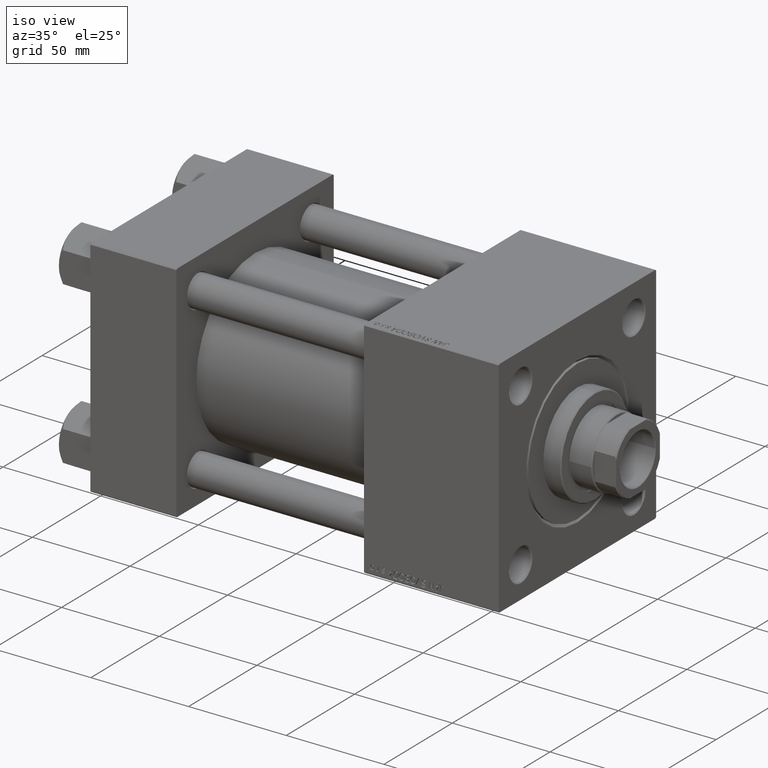
[diagram: clean part render]
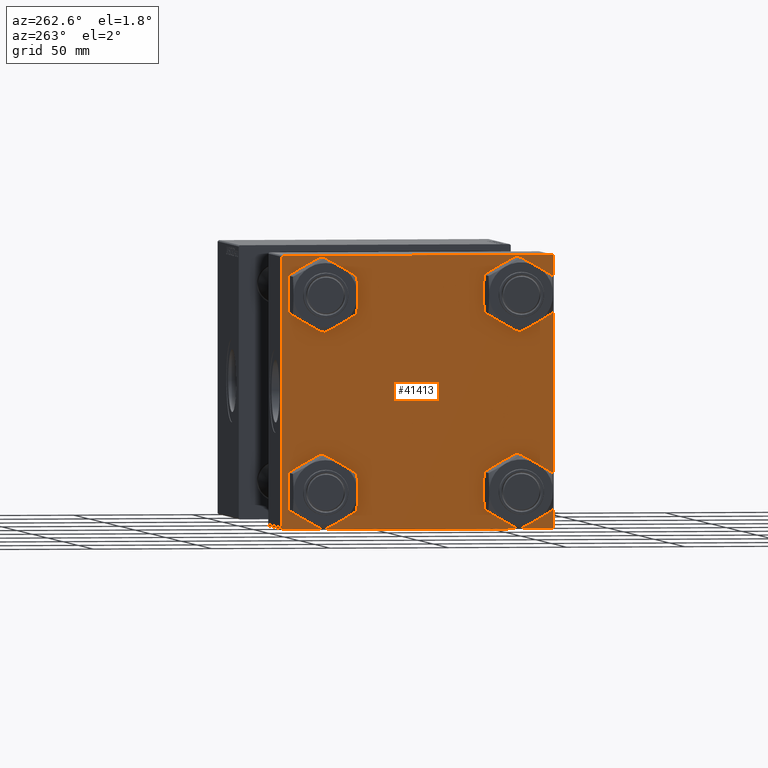
[diagram: tour spotlight — one face highlighted and labeled with its STEP entity id]
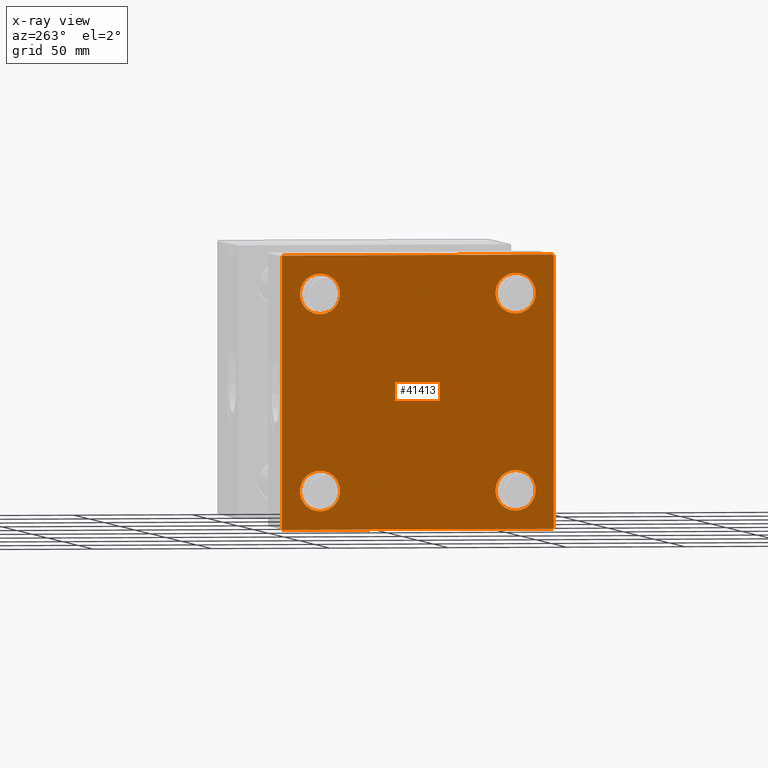
[diagram: x-ray of the same camera — body ghosted, this tour face saturated]
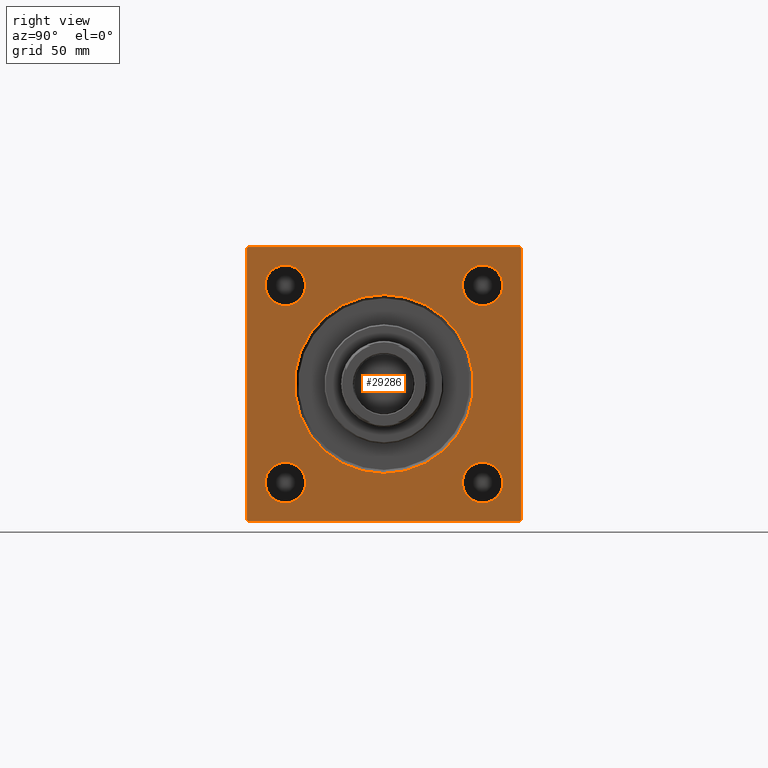
[diagram: tour spotlight — one face highlighted and labeled with its STEP entity id]
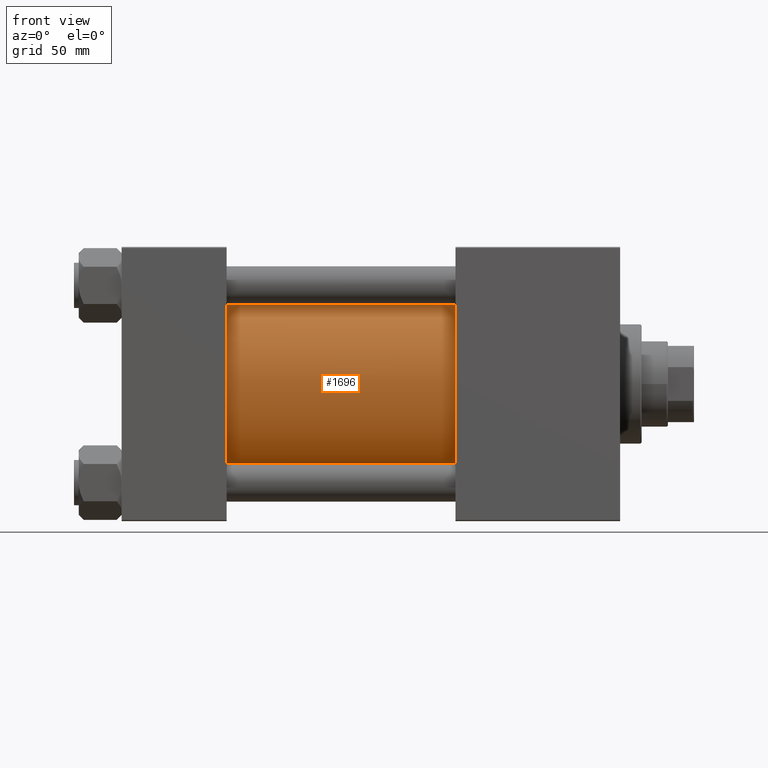
[diagram: tour spotlight — one face highlighted and labeled with its STEP entity id]
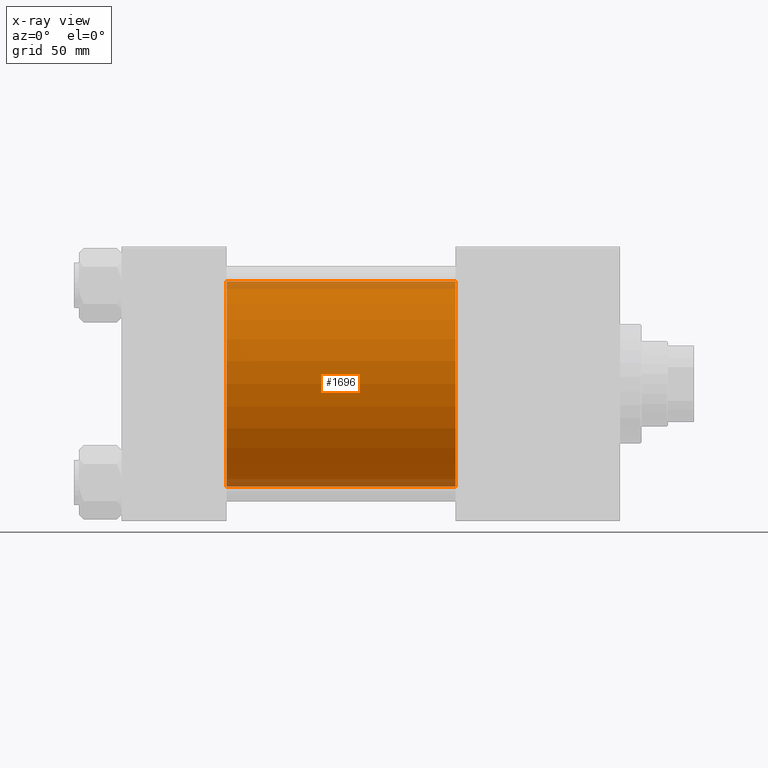
[diagram: x-ray of the same camera — body ghosted, this tour face saturated]
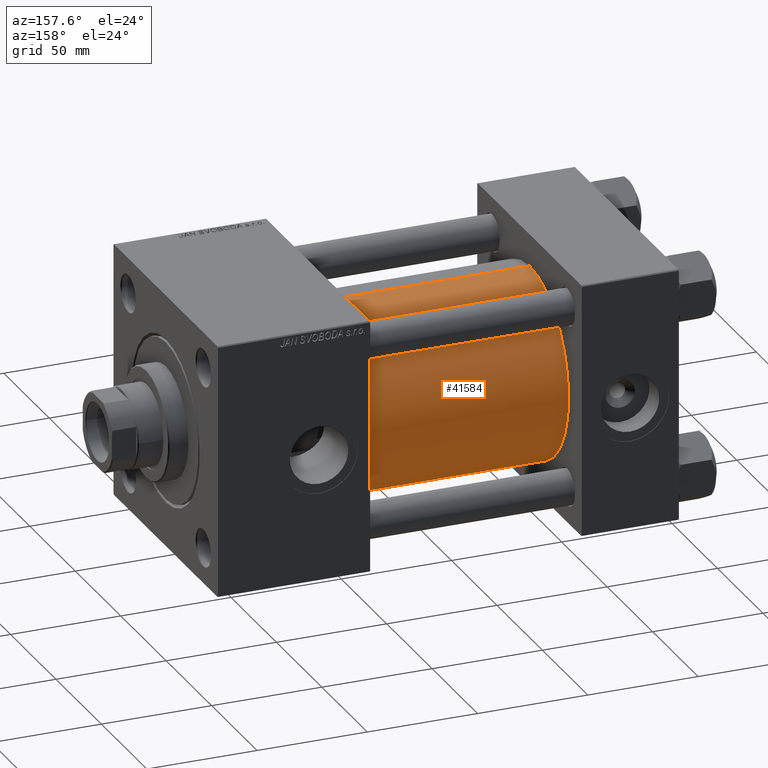
[diagram: tour spotlight — one face highlighted and labeled with its STEP entity id]
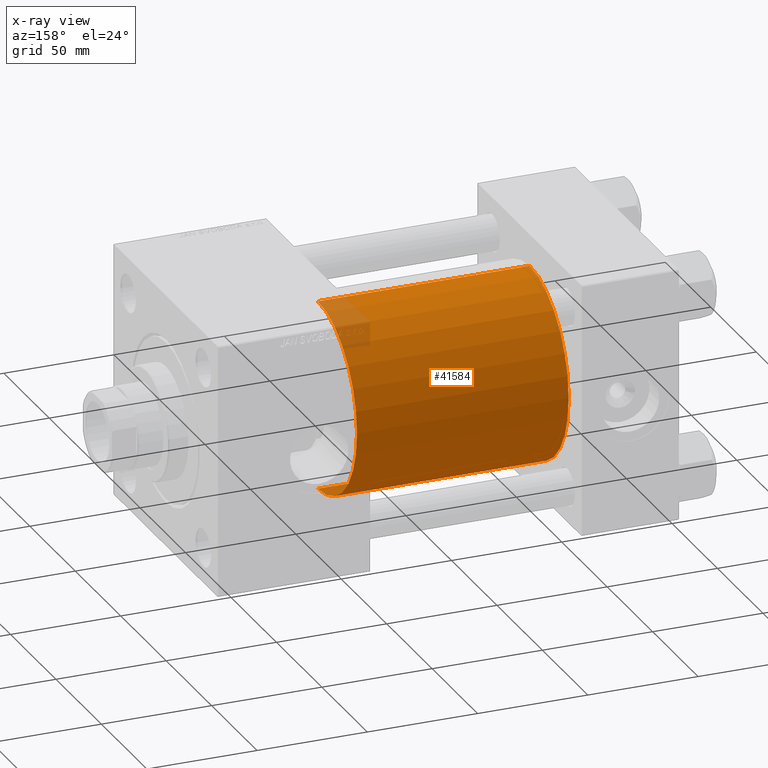
[diagram: x-ray of the same camera — body ghosted, this tour face saturated]
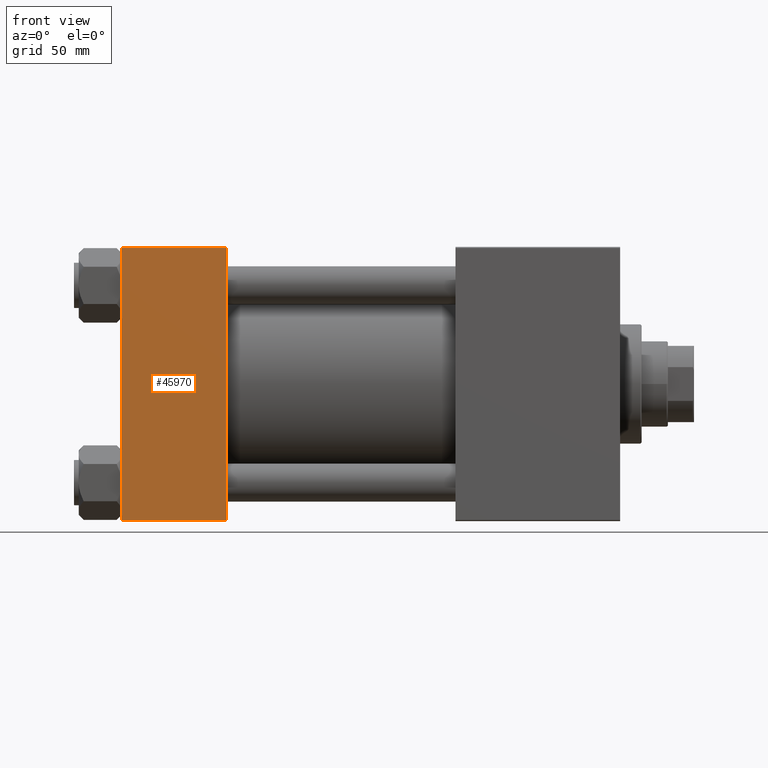
[diagram: tour spotlight — one face highlighted and labeled with its STEP entity id]
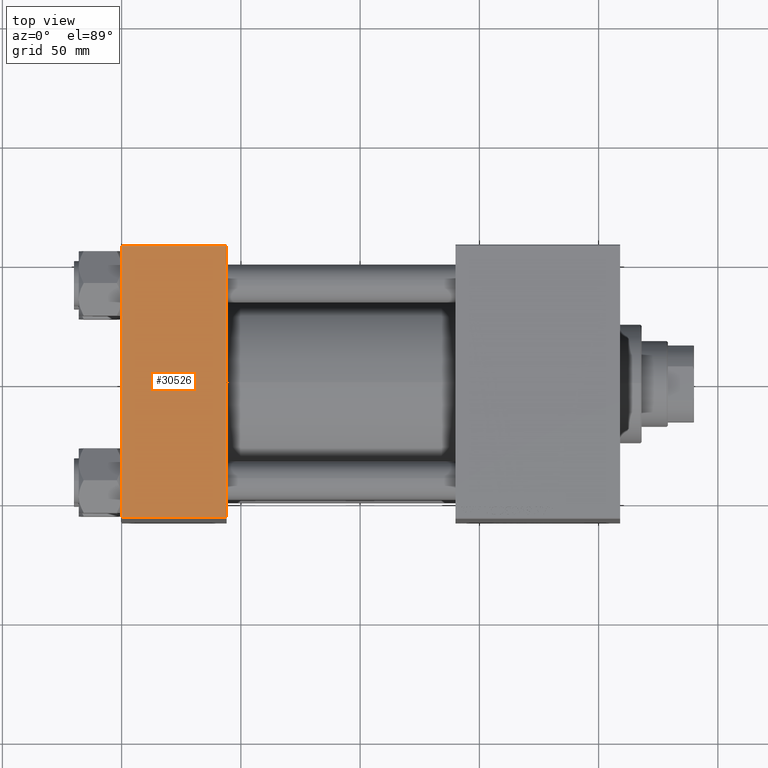
[diagram: tour spotlight — one face highlighted and labeled with its STEP entity id]
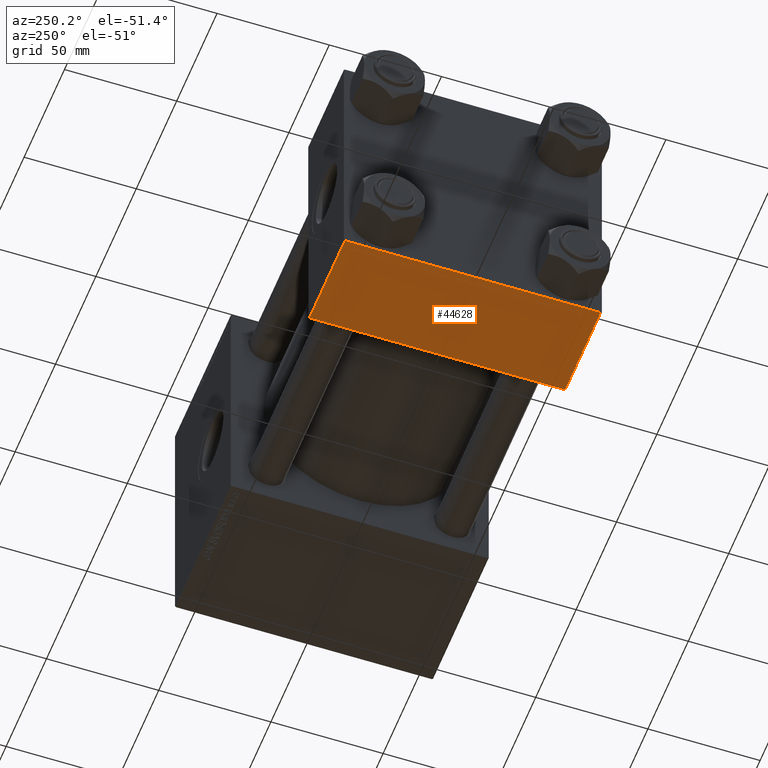
[diagram: tour spotlight — one face highlighted and labeled with its STEP entity id]
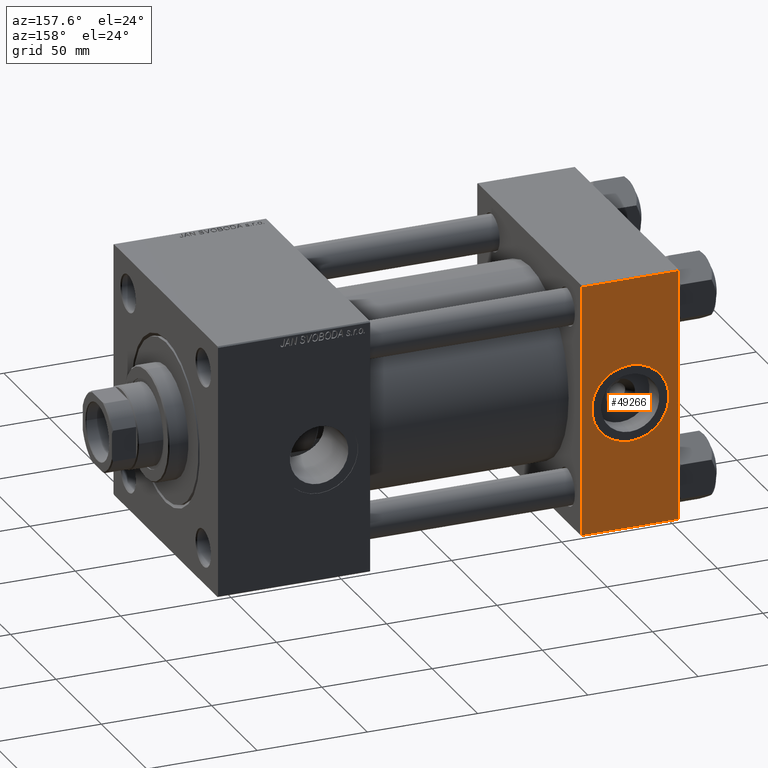
[diagram: tour spotlight — one face highlighted and labeled with its STEP entity id]
A machine part: a face-by-face anatomy tour. The part has 1230 B-rep faces; the first image is the clean iso view, then the 8 largest visible faces are spotlighted one at a time (largest first), each with its STEP entity span.

Face 1 — auxiliary view, entity #41413. An x-ray twin of the same camera follows (body ghosted, this face saturated) — the face is partly hidden behind the body. In plain terms, the highlighted planar face has unit normal (-1, 0, 0).
Definition (entity closure, byte-faithful):
#321 = EDGE_CURVE ( 'NONE', #19626, #32813, #13951, .T. ) ;
#696 = DIRECTION ( 'NONE',  ( 0.000000000000000000, 0.7071067811865573427, -0.7071067811865376918 ) ) ;
#1063 = CARTESIAN_POINT ( 'NONE',  ( 0.000000000000000000, -41.34999999999998721, -41.35000000000000853 ) ) ;
#2033 = EDGE_CURVE ( 'NONE', #12159, #17047, #43246, .T. ) ;
#2157 = DIRECTION ( 'NONE',  ( 0.000000000000000000, -1.000000000000000000, -1.206764157201257045E-16 ) ) ;
#2257 = CARTESIAN_POINT ( 'NONE',  ( 0.000000000000000000, 41.34999999999999432, -41.35000000000000142 ) ) ;
#2276 = FACE_BOUND ( 'NONE', #50941, .T. ) ;
#2323 = LINE ( 'NONE', #18005, #18052 ) ;
#3218 = EDGE_CURVE ( 'NONE', #42514, #32182, #2323, .T. ) ;
#3256 = CARTESIAN_POINT ( 'NONE',  ( 0.000000000000000000, 41.34999999999999432, 41.35000000000000142 ) ) ;
#3346 = VERTEX_POINT ( 'NONE', #47366 ) ;
#3399 = EDGE_CURVE ( 'NONE', #23823, #3346, #35661, .T. ) ;
#3505 = CARTESIAN_POINT ( 'NONE',  ( 0.000000000000000000, -57.00000000000000711, -57.50000000000000711 ) ) ;
#4427 = ORIENTED_EDGE ( 'NONE', *, *, #3218, .T. ) ;
#4753 = VERTEX_POINT ( 'NONE', #9852 ) ;
#4820 = AXIS2_PLACEMENT_3D ( 'NONE', #48598, #28673, #18931 ) ;
#5130 = EDGE_CURVE ( 'NONE', #28894, #48540, #24883, .T. ) ;
#6443 = VERTEX_POINT ( 'NONE', #3505 ) ;
#6459 = AXIS2_PLACEMENT_3D ( 'NONE', #3256, #35193, #51184 ) ;
#6706 = DIRECTION ( 'NONE',  ( 0.000000000000000000, 0.000000000000000000, 1.000000000000000000 ) ) ;
#6778 = CARTESIAN_POINT ( 'NONE',  ( 0.000000000000000000, -41.34999999999998721, 41.35000000000000853 ) ) ;
#7509 = ORIENTED_EDGE ( 'NONE', *, *, #9512, .T. ) ;
#8244 = EDGE_LOOP ( 'NONE', ( #41637, #50187 ) ) ;
#8657 = EDGE_CURVE ( 'NONE', #3346, #23823, #9133, .T. ) ;
#8899 = DIRECTION ( 'NONE',  ( 0.000000000000000000, 0.000000000000000000, 1.000000000000000000 ) ) ;
#9133 = CIRCLE ( 'NONE', #18313, 8.499999999999992895 ) ;
#9512 = EDGE_CURVE ( 'NONE', #6443, #46563, #25041, .T. ) ;
#9790 = ORIENTED_EDGE ( 'NONE', *, *, #3399, .T. ) ;
#9793 = CARTESIAN_POINT ( 'NONE',  ( 0.000000000000000000, 57.49999999999999289, 57.50000000000000711 ) ) ;
#9852 = CARTESIAN_POINT ( 'NONE',  ( 0.000000000000000000, 57.00000000000000711, 57.50000000000000711 ) ) ;
#9855 = FACE_BOUND ( 'NONE', #26596, .T. ) ;
#10028 = AXIS2_PLACEMENT_3D ( 'NONE', #30028, #46018, #22164 ) ;
#11078 = DIRECTION ( 'NONE',  ( 0.000000000000000000, -1.000000000000000000, -1.206764157201257045E-16 ) ) ;
#11604 = EDGE_CURVE ( 'NONE', #29688, #42514, #42528, .T. ) ;
#12159 = VERTEX_POINT ( 'NONE', #17261 ) ;
#12249 = EDGE_CURVE ( 'NONE', #48540, #28894, #36852, .T. ) ;
#12728 = CARTESIAN_POINT ( 'NONE',  ( 0.000000000000000000, 57.24999999999922551, 57.25000000000081712 ) ) ;
#13056 = AXIS2_PLACEMENT_3D ( 'NONE', #6778, #31133, #23793 ) ;
#13337 = VERTEX_POINT ( 'NONE', #45766 ) ;
#13716 = ORIENTED_EDGE ( 'NONE', *, *, #321, .T. ) ;
#13906 = CIRCLE ( 'NONE', #28151, 8.499999999999992895 ) ;
#13951 = CIRCLE ( 'NONE', #38220, 8.499999999999992895 ) ;
#14040 = PLANE ( 'NONE',  #10028 ) ;
#14293 = ORIENTED_EDGE ( 'NONE', *, *, #11604, .T. ) ;
#14518 = DIRECTION ( 'NONE',  ( 1.000000000000000000, -0.000000000000000000, 0.000000000000000000 ) ) ;
#14559 = FACE_BOUND ( 'NONE', #26829, .T. ) ;
#15529 = CARTESIAN_POINT ( 'NONE',  ( 0.000000000000000000, 57.49999999999999289, 57.50000000000000711 ) ) ;
#16604 = LINE ( 'NONE', #37034, #21252 ) ;
#16740 = EDGE_CURVE ( 'NONE', #4753, #29688, #27953, .T. ) ;
#17047 = VERTEX_POINT ( 'NONE', #36654 ) ;
#17261 = CARTESIAN_POINT ( 'NONE',  ( 0.000000000000000000, -57.50000000000000711, 57.00000000000000711 ) ) ;
#17458 = VECTOR ( 'NONE', #32910, 1000.000000000000114 ) ;
#18005 = CARTESIAN_POINT ( 'NONE',  ( 0.000000000000000000, 57.25000000000081712, -57.24999999999922551 ) ) ;
#18052 = VECTOR ( 'NONE', #49987, 1000.000000000000114 ) ;
#18125 = CARTESIAN_POINT ( 'NONE',  ( 0.000000000000000000, 41.34999999999999432, -49.85000000000000142 ) ) ;
#18166 = ORIENTED_EDGE ( 'NONE', *, *, #33088, .T. ) ;
#18313 = AXIS2_PLACEMENT_3D ( 'NONE', #26850, #14518, #26068 ) ;
#18931 = DIRECTION ( 'NONE',  ( 0.000000000000000000, 0.000000000000000000, 1.000000000000000000 ) ) ;
#19296 = DIRECTION ( 'NONE',  ( 1.000000000000000000, -0.000000000000000000, 0.000000000000000000 ) ) ;
#19626 = VERTEX_POINT ( 'NONE', #20272 ) ;
#19808 = CARTESIAN_POINT ( 'NONE',  ( 0.000000000000000000, 41.34999999999999432, 41.35000000000000142 ) ) ;
#20272 = CARTESIAN_POINT ( 'NONE',  ( 0.000000000000000000, -41.34999999999998721, -49.85000000000000853 ) ) ;
#21252 = VECTOR ( 'NONE', #32607, 1000.000000000000000 ) ;
#22164 = DIRECTION ( 'NONE',  ( -0.000000000000000000, 0.000000000000000000, 1.000000000000000000 ) ) ;
#22244 = ORIENTED_EDGE ( 'NONE', *, *, #24982, .F. ) ;
#23793 = DIRECTION ( 'NONE',  ( 0.000000000000000000, 0.000000000000000000, 1.000000000000000000 ) ) ;
#23823 = VERTEX_POINT ( 'NONE', #37533 ) ;
#24419 = EDGE_CURVE ( 'NONE', #44156, #13337, #45522, .T. ) ;
#24736 = EDGE_CURVE ( 'NONE', #12159, #46563, #16604, .T. ) ;
#24883 = CIRCLE ( 'NONE', #6459, 8.499999999999992895 ) ;
#24982 = EDGE_CURVE ( 'NONE', #4753, #17047, #50900, .T. ) ;
#25041 = LINE ( 'NONE', #41020, #17458 ) ;
#25523 = DIRECTION ( 'NONE',  ( 0.000000000000000000, 0.000000000000000000, -1.000000000000000000 ) ) ;
#26068 = DIRECTION ( 'NONE',  ( 0.000000000000000000, 0.000000000000000000, 1.000000000000000000 ) ) ;
#26596 = EDGE_LOOP ( 'NONE', ( #18166, #13716 ) ) ;
#26731 = DIRECTION ( 'NONE',  ( 1.000000000000000000, -0.000000000000000000, 0.000000000000000000 ) ) ;
#26829 = EDGE_LOOP ( 'NONE', ( #41211, #28399 ) ) ;
#26850 = CARTESIAN_POINT ( 'NONE',  ( 0.000000000000000000, -41.34999999999998721, 41.35000000000000853 ) ) ;
#26867 = ORIENTED_EDGE ( 'NONE', *, *, #50297, .T. ) ;
#27622 = CARTESIAN_POINT ( 'NONE',  ( 0.000000000000000000, -57.50000000000000711, -57.00000000000000711 ) ) ;
#27953 = LINE ( 'NONE', #12728, #47758 ) ;
#28120 = EDGE_LOOP ( 'NONE', ( #14293, #4427, #26867, #7509, #28660, #50972, #22244, #28473 ) ) ;
#28140 = CARTESIAN_POINT ( 'NONE',  ( 0.000000000000000000, 57.49999999999999289, 57.00000000000003553 ) ) ;
#28151 = AXIS2_PLACEMENT_3D ( 'NONE', #1063, #40095, #8899 ) ;
#28399 = ORIENTED_EDGE ( 'NONE', *, *, #5130, .T. ) ;
#28473 = ORIENTED_EDGE ( 'NONE', *, *, #16740, .T. ) ;
#28491 = AXIS2_PLACEMENT_3D ( 'NONE', #19808, #19296, #43126 ) ;
#28660 = ORIENTED_EDGE ( 'NONE', *, *, #24736, .F. ) ;
#28673 = DIRECTION ( 'NONE',  ( 1.000000000000000000, -0.000000000000000000, 0.000000000000000000 ) ) ;
#28894 = VERTEX_POINT ( 'NONE', #44366 ) ;
#29688 = VERTEX_POINT ( 'NONE', #28140 ) ;
#29741 = DIRECTION ( 'NONE',  ( 1.000000000000000000, -0.000000000000000000, 0.000000000000000000 ) ) ;
#30028 = CARTESIAN_POINT ( 'NONE',  ( 0.000000000000000000, 0.000000000000000000, 0.000000000000000000 ) ) ;
#30454 = AXIS2_PLACEMENT_3D ( 'NONE', #2257, #29741, #6706 ) ;
#30616 = CARTESIAN_POINT ( 'NONE',  ( 0.000000000000000000, 41.34999999999999432, 49.85000000000000142 ) ) ;
#31133 = DIRECTION ( 'NONE',  ( 1.000000000000000000, -0.000000000000000000, 0.000000000000000000 ) ) ;
#32182 = VERTEX_POINT ( 'NONE', #41419 ) ;
#32607 = DIRECTION ( 'NONE',  ( 0.000000000000000000, 0.000000000000000000, -1.000000000000000000 ) ) ;
#32678 = VECTOR ( 'NONE', #25523, 1000.000000000000000 ) ;
#32813 = VERTEX_POINT ( 'NONE', #36468 ) ;
#32910 = DIRECTION ( 'NONE',  ( 0.000000000000000000, -0.7071067811865474617, 0.7071067811865474617 ) ) ;
#33088 = EDGE_CURVE ( 'NONE', #32813, #19626, #13906, .T. ) ;
#33946 = FACE_OUTER_BOUND ( 'NONE', #28120, .T. ) ;
#34317 = CARTESIAN_POINT ( 'NONE',  ( 0.000000000000000000, -41.34999999999998721, -41.35000000000000853 ) ) ;
#35193 = DIRECTION ( 'NONE',  ( 1.000000000000000000, -0.000000000000000000, 0.000000000000000000 ) ) ;
#35212 = EDGE_CURVE ( 'NONE', #13337, #44156, #36578, .T. ) ;
#35661 = CIRCLE ( 'NONE', #13056, 8.499999999999992895 ) ;
#36468 = CARTESIAN_POINT ( 'NONE',  ( 0.000000000000000000, -41.34999999999998721, -32.85000000000001563 ) ) ;
#36578 = CIRCLE ( 'NONE', #4820, 8.499999999999992895 ) ;
#36654 = CARTESIAN_POINT ( 'NONE',  ( 0.000000000000000000, -57.00000000000003553, 57.49999999999999289 ) ) ;
#36852 = CIRCLE ( 'NONE', #28491, 8.499999999999992895 ) ;
#37034 = CARTESIAN_POINT ( 'NONE',  ( 0.000000000000000000, -57.50000000000000711, 57.49999999999999289 ) ) ;
#37533 = CARTESIAN_POINT ( 'NONE',  ( 0.000000000000000000, -41.34999999999998721, 32.85000000000001563 ) ) ;
#38220 = AXIS2_PLACEMENT_3D ( 'NONE', #34317, #26731, #38768 ) ;
#38768 = DIRECTION ( 'NONE',  ( 0.000000000000000000, 0.000000000000000000, 1.000000000000000000 ) ) ;
#40089 = DIRECTION ( 'NONE',  ( -0.000000000000000000, 0.7071067811865376918, 0.7071067811865573427 ) ) ;
#40095 = DIRECTION ( 'NONE',  ( 1.000000000000000000, -0.000000000000000000, 0.000000000000000000 ) ) ;
#40929 = LINE ( 'NONE', #49569, #45953 ) ;
#41020 = CARTESIAN_POINT ( 'NONE',  ( 0.000000000000000000, -57.25000000000000711, -57.25000000000000711 ) ) ;
#41211 = ORIENTED_EDGE ( 'NONE', *, *, #12249, .T. ) ;
#41365 = VECTOR ( 'NONE', #11078, 1000.000000000000000 ) ;
#41413 = ADVANCED_FACE ( 'NONE', ( #2276, #9855, #41819, #14559, #33946 ), #14040, .T. ) ;
#41419 = CARTESIAN_POINT ( 'NONE',  ( 0.000000000000000000, 57.00000000000002132, -57.49999999999999289 ) ) ;
#41637 = ORIENTED_EDGE ( 'NONE', *, *, #35212, .T. ) ;
#41819 = FACE_BOUND ( 'NONE', #8244, .T. ) ;
#42514 = VERTEX_POINT ( 'NONE', #50543 ) ;
#42528 = LINE ( 'NONE', #9793, #32678 ) ;
#43126 = DIRECTION ( 'NONE',  ( 0.000000000000000000, 0.000000000000000000, 1.000000000000000000 ) ) ;
#43246 = LINE ( 'NONE', #47965, #50693 ) ;
#44156 = VERTEX_POINT ( 'NONE', #18125 ) ;
#44366 = CARTESIAN_POINT ( 'NONE',  ( 0.000000000000000000, 41.34999999999999432, 32.85000000000000853 ) ) ;
#45522 = CIRCLE ( 'NONE', #30454, 8.499999999999992895 ) ;
#45766 = CARTESIAN_POINT ( 'NONE',  ( 0.000000000000000000, 41.34999999999999432, -32.85000000000000853 ) ) ;
#45953 = VECTOR ( 'NONE', #2157, 1000.000000000000000 ) ;
#46018 = DIRECTION ( 'NONE',  ( -1.000000000000000000, 0.000000000000000000, -0.000000000000000000 ) ) ;
#46563 = VERTEX_POINT ( 'NONE', #27622 ) ;
#47366 = CARTESIAN_POINT ( 'NONE',  ( 0.000000000000000000, -41.34999999999998721, 49.85000000000000853 ) ) ;
#47758 = VECTOR ( 'NONE', #696, 1000.000000000000114 ) ;
#47965 = CARTESIAN_POINT ( 'NONE',  ( -0.000000000000000000, -57.25000000000081712, 57.24999999999922551 ) ) ;
#48540 = VERTEX_POINT ( 'NONE', #30616 ) ;
#48598 = CARTESIAN_POINT ( 'NONE',  ( 0.000000000000000000, 41.34999999999999432, -41.35000000000000142 ) ) ;
#49569 = CARTESIAN_POINT ( 'NONE',  ( 0.000000000000000000, 57.49999999999999289, -57.49999999999999289 ) ) ;
#49987 = DIRECTION ( 'NONE',  ( -0.000000000000000000, -0.7071067811865376918, -0.7071067811865573427 ) ) ;
#50113 = ORIENTED_EDGE ( 'NONE', *, *, #8657, .T. ) ;
#50187 = ORIENTED_EDGE ( 'NONE', *, *, #24419, .T. ) ;
#50297 = EDGE_CURVE ( 'NONE', #32182, #6443, #40929, .T. ) ;
#50543 = CARTESIAN_POINT ( 'NONE',  ( 0.000000000000000000, 57.49999999999999289, -57.00000000000000711 ) ) ;
#50693 = VECTOR ( 'NONE', #40089, 1000.000000000000114 ) ;
#50900 = LINE ( 'NONE', #15529, #41365 ) ;
#50941 = EDGE_LOOP ( 'NONE', ( #50113, #9790 ) ) ;
#50972 = ORIENTED_EDGE ( 'NONE', *, *, #2033, .T. ) ;
#51184 = DIRECTION ( 'NONE',  ( 0.000000000000000000, 0.000000000000000000, 1.000000000000000000 ) ) ;

Face 2 — right view, entity #29286. In plain terms, the highlighted planar face has unit normal (-1, 0, 0).
Definition (entity closure, byte-faithful):
#72 = ORIENTED_EDGE ( 'NONE', *, *, #15568, .T. ) ;
#488 = LINE ( 'NONE', #44224, #50235 ) ;
#1398 = CARTESIAN_POINT ( 'NONE',  ( 209.0000000000000284, 57.00000000000002842, 57.50000000000000711 ) ) ;
#1495 = CARTESIAN_POINT ( 'NONE',  ( 209.0000000000000284, 57.50000000000000000, -56.99999999999999289 ) ) ;
#1721 = EDGE_LOOP ( 'NONE', ( #10129, #72 ) ) ;
#1852 = VERTEX_POINT ( 'NONE', #36525 ) ;
#2198 = ORIENTED_EDGE ( 'NONE', *, *, #9250, .T. ) ;
#2538 = CIRCLE ( 'NONE', #31827, 8.499999999999980460 ) ;
#2541 = CIRCLE ( 'NONE', #15920, 8.499999999999980460 ) ;
#2611 = VECTOR ( 'NONE', #47921, 1000.000000000000000 ) ;
#3333 = CARTESIAN_POINT ( 'NONE',  ( 209.0000000000000284, 41.34999999999999432, -49.84999999999998721 ) ) ;
#3734 = CARTESIAN_POINT ( 'NONE',  ( 209.0000000000000284, -41.34999999999999432, 49.84999999999998721 ) ) ;
#4325 = DIRECTION ( 'NONE',  ( -1.000000000000000000, 0.000000000000000000, -0.000000000000000000 ) ) ;
#4891 = VERTEX_POINT ( 'NONE', #40724 ) ;
#5048 = CARTESIAN_POINT ( 'NONE',  ( 209.0000000000000284, 4.592425496802578311E-15, 37.50000000000003553 ) ) ;
#5085 = CARTESIAN_POINT ( 'NONE',  ( 209.0000000000000284, 57.00000000000000000, -57.49999999999996447 ) ) ;
#5484 = CARTESIAN_POINT ( 'NONE',  ( 209.0000000000000284, 0.000000000000000000, -37.50000000000003553 ) ) ;
#5501 = DIRECTION ( 'NONE',  ( -1.000000000000000000, 0.000000000000000000, -0.000000000000000000 ) ) ;
#5845 = LINE ( 'NONE', #1398, #32618 ) ;
#6041 = DIRECTION ( 'NONE',  ( 0.000000000000000000, 0.000000000000000000, 1.000000000000000000 ) ) ;
#6480 = DIRECTION ( 'NONE',  ( -0.000000000000000000, -0.7071067811865524577, -0.7071067811865426878 ) ) ;
#7517 = VERTEX_POINT ( 'NONE', #5484 ) ;
#7557 = CIRCLE ( 'NONE', #31826, 37.50000000000003553 ) ;
#7628 = VECTOR ( 'NONE', #27604, 1000.000000000000000 ) ;
#7941 = VERTEX_POINT ( 'NONE', #1495 ) ;
#7993 = CARTESIAN_POINT ( 'NONE',  ( 209.0000000000000284, 41.34999999999999432, 41.35000000000000142 ) ) ;
#8004 = CIRCLE ( 'NONE', #37249, 8.499999999999980460 ) ;
#8307 = EDGE_CURVE ( 'NONE', #22451, #4891, #31105, .T. ) ;
#8475 = ORIENTED_EDGE ( 'NONE', *, *, #46734, .F. ) ;
#8485 = ORIENTED_EDGE ( 'NONE', *, *, #27823, .T. ) ;
#9009 = DIRECTION ( 'NONE',  ( 0.000000000000000000, 0.000000000000000000, -1.000000000000000000 ) ) ;
#9250 = EDGE_CURVE ( 'NONE', #1852, #22451, #33784, .T. ) ;
#9699 = EDGE_LOOP ( 'NONE', ( #20054, #22382, #8475, #39675, #33860, #28874, #2198, #30168 ) ) ;
#10129 = ORIENTED_EDGE ( 'NONE', *, *, #50149, .T. ) ;
#11304 = EDGE_CURVE ( 'NONE', #16073, #46276, #2541, .T. ) ;
#11627 = CARTESIAN_POINT ( 'NONE',  ( 209.0000000000000284, -41.34999999999999432, 41.35000000000000142 ) ) ;
#12097 = ORIENTED_EDGE ( 'NONE', *, *, #42099, .T. ) ;
#12414 = CARTESIAN_POINT ( 'NONE',  ( 209.0000000000000284, -41.34999999999999432, -49.84999999999998721 ) ) ;
#12574 = AXIS2_PLACEMENT_3D ( 'NONE', #21279, #12664, #25474 ) ;
#12664 = DIRECTION ( 'NONE',  ( -1.000000000000000000, 0.000000000000000000, -0.000000000000000000 ) ) ;
#12957 = AXIS2_PLACEMENT_3D ( 'NONE', #30823, #5501, #51264 ) ;
#13130 = AXIS2_PLACEMENT_3D ( 'NONE', #7993, #15845, #31846 ) ;
#15008 = EDGE_LOOP ( 'NONE', ( #34094, #40276 ) ) ;
#15568 = EDGE_CURVE ( 'NONE', #26397, #50733, #2538, .T. ) ;
#15622 = CARTESIAN_POINT ( 'NONE',  ( 209.0000000000000284, 0.000000000000000000, 0.000000000000000000 ) ) ;
#15845 = DIRECTION ( 'NONE',  ( -1.000000000000000000, 0.000000000000000000, -0.000000000000000000 ) ) ;
#15900 = CARTESIAN_POINT ( 'NONE',  ( 209.0000000000000284, -57.00000000000004263, 57.49999999999999289 ) ) ;
#15920 = AXIS2_PLACEMENT_3D ( 'NONE', #40992, #48098, #24763 ) ;
#16037 = EDGE_LOOP ( 'NONE', ( #8485, #21119 ) ) ;
#16073 = VERTEX_POINT ( 'NONE', #40246 ) ;
#16250 = DIRECTION ( 'NONE',  ( -1.000000000000000000, 0.000000000000000000, -0.000000000000000000 ) ) ;
#17269 = CIRCLE ( 'NONE', #13130, 8.499999999999980460 ) ;
#17326 = VERTEX_POINT ( 'NONE', #43954 ) ;
#17538 = CARTESIAN_POINT ( 'NONE',  ( 209.0000000000000284, 57.50000000000000000, 57.50000000000000711 ) ) ;
#17563 = ORIENTED_EDGE ( 'NONE', *, *, #33893, .T. ) ;
#18132 = VERTEX_POINT ( 'NONE', #47125 ) ;
#19030 = FACE_BOUND ( 'NONE', #16037, .T. ) ;
#19273 = AXIS2_PLACEMENT_3D ( 'NONE', #29828, #45816, #50007 ) ;
#20054 = ORIENTED_EDGE ( 'NONE', *, *, #31300, .T. ) ;
#20248 = CARTESIAN_POINT ( 'NONE',  ( 209.0000000000000284, -57.00000000000001421, -57.49999999999997868 ) ) ;
#20540 = LINE ( 'NONE', #28905, #40617 ) ;
#21119 = ORIENTED_EDGE ( 'NONE', *, *, #11304, .T. ) ;
#21279 = CARTESIAN_POINT ( 'NONE',  ( 209.0000000000000284, 0.000000000000000000, 0.000000000000000000 ) ) ;
#21320 = AXIS2_PLACEMENT_3D ( 'NONE', #15622, #27698, #42614 ) ;
#22252 = DIRECTION ( 'NONE',  ( -1.000000000000000000, 0.000000000000000000, -0.000000000000000000 ) ) ;
#22307 = CARTESIAN_POINT ( 'NONE',  ( 209.0000000000000284, 57.50000000000000000, -57.49999999999996447 ) ) ;
#22318 = VERTEX_POINT ( 'NONE', #5085 ) ;
#22382 = ORIENTED_EDGE ( 'NONE', *, *, #47051, .T. ) ;
#22451 = VERTEX_POINT ( 'NONE', #15900 ) ;
#22540 = AXIS2_PLACEMENT_3D ( 'NONE', #11627, #22637, #34663 ) ;
#22637 = DIRECTION ( 'NONE',  ( -1.000000000000000000, 0.000000000000000000, -0.000000000000000000 ) ) ;
#24763 = DIRECTION ( 'NONE',  ( 0.000000000000000000, 0.000000000000000000, 1.000000000000000000 ) ) ;
#25461 = EDGE_LOOP ( 'NONE', ( #38134, #49067 ) ) ;
#25474 = DIRECTION ( 'NONE',  ( 0.000000000000000000, 0.000000000000000000, 1.000000000000000000 ) ) ;
#25483 = CIRCLE ( 'NONE', #12957, 8.499999999999980460 ) ;
#25619 = EDGE_CURVE ( 'NONE', #32112, #44009, #25483, .T. ) ;
#25961 = CIRCLE ( 'NONE', #12574, 37.50000000000003553 ) ;
#26397 = VERTEX_POINT ( 'NONE', #3734 ) ;
#26547 = DIRECTION ( 'NONE',  ( -1.000000000000000000, 0.000000000000000000, -0.000000000000000000 ) ) ;
#26642 = FACE_BOUND ( 'NONE', #25461, .T. ) ;
#26912 = FACE_OUTER_BOUND ( 'NONE', #9699, .T. ) ;
#27604 = DIRECTION ( 'NONE',  ( 0.000000000000000000, 0.7071067811865328068, -0.7071067811865622277 ) ) ;
#27698 = DIRECTION ( 'NONE',  ( -1.000000000000000000, 0.000000000000000000, -0.000000000000000000 ) ) ;
#27823 = EDGE_CURVE ( 'NONE', #46276, #16073, #8004, .T. ) ;
#28048 = CARTESIAN_POINT ( 'NONE',  ( 209.0000000000000284, 57.50000000000000000, 57.00000000000000711 ) ) ;
#28576 = VERTEX_POINT ( 'NONE', #35783 ) ;
#28874 = ORIENTED_EDGE ( 'NONE', *, *, #51361, .T. ) ;
#28905 = CARTESIAN_POINT ( 'NONE',  ( 209.0000000000000284, -57.49999999999999289, 57.49999999999999289 ) ) ;
#28927 = CARTESIAN_POINT ( 'NONE',  ( 209.0000000000000284, 57.50000000000000000, -56.99999999999999289 ) ) ;
#29286 = ADVANCED_FACE ( 'NONE', ( #43403, #38680, #38935, #19030, #26642, #26912 ), #51268, .F. ) ;
#29444 = LINE ( 'NONE', #28927, #46841 ) ;
#29828 = CARTESIAN_POINT ( 'NONE',  ( 209.0000000000000284, -41.34999999999999432, -41.35000000000000142 ) ) ;
#30168 = ORIENTED_EDGE ( 'NONE', *, *, #8307, .T. ) ;
#30823 = CARTESIAN_POINT ( 'NONE',  ( 209.0000000000000284, -41.34999999999999432, -41.35000000000000142 ) ) ;
#31101 = DIRECTION ( 'NONE',  ( 0.000000000000000000, 0.000000000000000000, 1.000000000000000000 ) ) ;
#31105 = LINE ( 'NONE', #46294, #35840 ) ;
#31300 = EDGE_CURVE ( 'NONE', #4891, #18132, #20540, .T. ) ;
#31549 = CARTESIAN_POINT ( 'NONE',  ( 209.0000000000000284, 41.34999999999999432, 49.84999999999998721 ) ) ;
#31826 = AXIS2_PLACEMENT_3D ( 'NONE', #34651, #26547, #33633 ) ;
#31827 = AXIS2_PLACEMENT_3D ( 'NONE', #48226, #16250, #33005 ) ;
#31846 = DIRECTION ( 'NONE',  ( 0.000000000000000000, 0.000000000000000000, 1.000000000000000000 ) ) ;
#32112 = VERTEX_POINT ( 'NONE', #32551 ) ;
#32148 = VERTEX_POINT ( 'NONE', #5048 ) ;
#32394 = VERTEX_POINT ( 'NONE', #28048 ) ;
#32439 = DIRECTION ( 'NONE',  ( 0.000000000000000000, 0.000000000000000000, -1.000000000000000000 ) ) ;
#32551 = CARTESIAN_POINT ( 'NONE',  ( 209.0000000000000284, -41.34999999999999432, -32.85000000000002274 ) ) ;
#32582 = CIRCLE ( 'NONE', #22540, 8.499999999999980460 ) ;
#32618 = VECTOR ( 'NONE', #49324, 1000.000000000000000 ) ;
#32671 = AXIS2_PLACEMENT_3D ( 'NONE', #48050, #4325, #31101 ) ;
#33005 = DIRECTION ( 'NONE',  ( 0.000000000000000000, 0.000000000000000000, 1.000000000000000000 ) ) ;
#33633 = DIRECTION ( 'NONE',  ( 0.000000000000000000, 0.000000000000000000, 1.000000000000000000 ) ) ;
#33784 = LINE ( 'NONE', #17538, #37545 ) ;
#33860 = ORIENTED_EDGE ( 'NONE', *, *, #46197, .F. ) ;
#33893 = EDGE_CURVE ( 'NONE', #48730, #28576, #17269, .T. ) ;
#34094 = ORIENTED_EDGE ( 'NONE', *, *, #46071, .T. ) ;
#34651 = CARTESIAN_POINT ( 'NONE',  ( 209.0000000000000284, 0.000000000000000000, 0.000000000000000000 ) ) ;
#34663 = DIRECTION ( 'NONE',  ( 0.000000000000000000, 0.000000000000000000, 1.000000000000000000 ) ) ;
#35783 = CARTESIAN_POINT ( 'NONE',  ( 209.0000000000000284, 41.34999999999999432, 32.85000000000002274 ) ) ;
#35840 = VECTOR ( 'NONE', #6480, 1000.000000000000000 ) ;
#36525 = CARTESIAN_POINT ( 'NONE',  ( 209.0000000000000284, 57.00000000000002842, 57.50000000000000711 ) ) ;
#37249 = AXIS2_PLACEMENT_3D ( 'NONE', #41909, #22252, #6041 ) ;
#37545 = VECTOR ( 'NONE', #46355, 1000.000000000000000 ) ;
#38134 = ORIENTED_EDGE ( 'NONE', *, *, #42167, .T. ) ;
#38680 = FACE_BOUND ( 'NONE', #1721, .T. ) ;
#38935 = FACE_BOUND ( 'NONE', #15008, .T. ) ;
#39675 = ORIENTED_EDGE ( 'NONE', *, *, #40642, .T. ) ;
#40246 = CARTESIAN_POINT ( 'NONE',  ( 209.0000000000000284, 41.34999999999999432, -32.85000000000002274 ) ) ;
#40276 = ORIENTED_EDGE ( 'NONE', *, *, #25619, .T. ) ;
#40617 = VECTOR ( 'NONE', #9009, 1000.000000000000000 ) ;
#40642 = EDGE_CURVE ( 'NONE', #22318, #7941, #29444, .T. ) ;
#40723 = DIRECTION ( 'NONE',  ( -0.000000000000000000, 0.7071067811865671127, 0.7071067811865279218 ) ) ;
#40724 = CARTESIAN_POINT ( 'NONE',  ( 209.0000000000000284, -57.49999999999999289, 57.00000000000004974 ) ) ;
#40749 = EDGE_CURVE ( 'NONE', #32148, #7517, #7557, .T. ) ;
#40907 = EDGE_LOOP ( 'NONE', ( #12097, #17563 ) ) ;
#40992 = CARTESIAN_POINT ( 'NONE',  ( 209.0000000000000284, 41.34999999999999432, -41.35000000000000142 ) ) ;
#41909 = CARTESIAN_POINT ( 'NONE',  ( 209.0000000000000284, 41.34999999999999432, -41.35000000000000142 ) ) ;
#42099 = EDGE_CURVE ( 'NONE', #28576, #48730, #43557, .T. ) ;
#42167 = EDGE_CURVE ( 'NONE', #7517, #32148, #25961, .T. ) ;
#42614 = DIRECTION ( 'NONE',  ( -0.000000000000000000, 0.000000000000000000, 1.000000000000000000 ) ) ;
#43403 = FACE_BOUND ( 'NONE', #40907, .T. ) ;
#43551 = CIRCLE ( 'NONE', #19273, 8.499999999999980460 ) ;
#43557 = CIRCLE ( 'NONE', #32671, 8.499999999999980460 ) ;
#43954 = CARTESIAN_POINT ( 'NONE',  ( 209.0000000000000284, -57.00000000000001421, -57.49999999999997868 ) ) ;
#44009 = VERTEX_POINT ( 'NONE', #12414 ) ;
#44224 = CARTESIAN_POINT ( 'NONE',  ( 209.0000000000000284, 57.50000000000000000, 57.50000000000000711 ) ) ;
#44347 = LINE ( 'NONE', #20248, #7628 ) ;
#45816 = DIRECTION ( 'NONE',  ( -1.000000000000000000, 0.000000000000000000, -0.000000000000000000 ) ) ;
#46071 = EDGE_CURVE ( 'NONE', #44009, #32112, #43551, .T. ) ;
#46197 = EDGE_CURVE ( 'NONE', #32394, #7941, #488, .T. ) ;
#46276 = VERTEX_POINT ( 'NONE', #3333 ) ;
#46294 = CARTESIAN_POINT ( 'NONE',  ( 209.0000000000000284, -57.49999999999999289, 57.00000000000004974 ) ) ;
#46355 = DIRECTION ( 'NONE',  ( 0.000000000000000000, -1.000000000000000000, -1.206764157201257291E-16 ) ) ;
#46734 = EDGE_CURVE ( 'NONE', #22318, #17326, #47661, .T. ) ;
#46841 = VECTOR ( 'NONE', #40723, 1000.000000000000000 ) ;
#47051 = EDGE_CURVE ( 'NONE', #18132, #17326, #44347, .T. ) ;
#47125 = CARTESIAN_POINT ( 'NONE',  ( 209.0000000000000284, -57.49999999999999289, -56.99999999999997868 ) ) ;
#47330 = CARTESIAN_POINT ( 'NONE',  ( 209.0000000000000284, -41.34999999999999432, 32.85000000000002274 ) ) ;
#47661 = LINE ( 'NONE', #22307, #2611 ) ;
#47921 = DIRECTION ( 'NONE',  ( 0.000000000000000000, -1.000000000000000000, -1.206764157201257291E-16 ) ) ;
#48050 = CARTESIAN_POINT ( 'NONE',  ( 209.0000000000000284, 41.34999999999999432, 41.35000000000000142 ) ) ;
#48098 = DIRECTION ( 'NONE',  ( -1.000000000000000000, 0.000000000000000000, -0.000000000000000000 ) ) ;
#48226 = CARTESIAN_POINT ( 'NONE',  ( 209.0000000000000284, -41.34999999999999432, 41.35000000000000142 ) ) ;
#48730 = VERTEX_POINT ( 'NONE', #31549 ) ;
#49067 = ORIENTED_EDGE ( 'NONE', *, *, #40749, .T. ) ;
#49324 = DIRECTION ( 'NONE',  ( 0.000000000000000000, -0.7071067811865279218, 0.7071067811865671127 ) ) ;
#50007 = DIRECTION ( 'NONE',  ( 0.000000000000000000, 0.000000000000000000, 1.000000000000000000 ) ) ;
#50149 = EDGE_CURVE ( 'NONE', #50733, #26397, #32582, .T. ) ;
#50235 = VECTOR ( 'NONE', #32439, 1000.000000000000000 ) ;
#50733 = VERTEX_POINT ( 'NONE', #47330 ) ;
#51264 = DIRECTION ( 'NONE',  ( 0.000000000000000000, 0.000000000000000000, 1.000000000000000000 ) ) ;
#51268 = PLANE ( 'NONE',  #21320 ) ;
#51361 = EDGE_CURVE ( 'NONE', #32394, #1852, #5845, .T. ) ;

Face 3 — front view, entity #1696. An x-ray twin of the same camera follows (body ghosted, this face saturated) — the face is partly hidden behind the body. In plain terms, the highlighted cylindrical surface (partial cylindrical patch) has radius 43 mm, axis along (-1, -0, -0).
Definition (entity closure, byte-faithful):
#956 = DIRECTION ( 'NONE',  ( 0.000000000000000000, 0.000000000000000000, 1.000000000000000000 ) ) ;
#1074 = EDGE_LOOP ( 'NONE', ( #27220, #51413, #16512, #32789 ) ) ;
#1379 = VECTOR ( 'NONE', #37675, 1000.000000000000000 ) ;
#1696 = ADVANCED_FACE ( 'NONE', ( #1766 ), #29753, .T. ) ;
#1766 = FACE_OUTER_BOUND ( 'NONE', #1074, .T. ) ;
#3240 = EDGE_CURVE ( 'NONE', #49280, #8326, #26409, .T. ) ;
#6200 = DIRECTION ( 'NONE',  ( 0.000000000000000000, 0.000000000000000000, 1.000000000000000000 ) ) ;
#8326 = VERTEX_POINT ( 'NONE', #33967 ) ;
#9247 = VECTOR ( 'NONE', #18433, 1000.000000000000000 ) ;
#9391 = VERTEX_POINT ( 'NONE', #15188 ) ;
#10366 = DIRECTION ( 'NONE',  ( -1.000000000000000000, -0.000000000000000000, -0.000000000000000000 ) ) ;
#10419 = CARTESIAN_POINT ( 'NONE',  ( 140.0000000000000000, -2.602085213965210642E-15, 43.00000000000000000 ) ) ;
#11442 = CARTESIAN_POINT ( 'NONE',  ( 44.00000000000000000, 2.663896022368408223E-15, -43.00000000000000000 ) ) ;
#12381 = CARTESIAN_POINT ( 'NONE',  ( 140.0000000000000000, -2.602085213965210642E-15, 0.000000000000000000 ) ) ;
#12892 = DIRECTION ( 'NONE',  ( 1.000000000000000000, 0.000000000000000000, 0.000000000000000000 ) ) ;
#15188 = CARTESIAN_POINT ( 'NONE',  ( 140.0000000000000000, 2.663896022368408223E-15, -43.00000000000000000 ) ) ;
#16284 = CIRCLE ( 'NONE', #45557, 43.00000000000000000 ) ;
#16512 = ORIENTED_EDGE ( 'NONE', *, *, #3240, .T. ) ;
#17314 = AXIS2_PLACEMENT_3D ( 'NONE', #33940, #10366, #6200 ) ;
#18433 = DIRECTION ( 'NONE',  ( -1.000000000000000000, -0.000000000000000000, -0.000000000000000000 ) ) ;
#18569 = CARTESIAN_POINT ( 'NONE',  ( 140.0000000000000000, -2.602085213965210642E-15, 43.00000000000000000 ) ) ;
#20748 = DIRECTION ( 'NONE',  ( 0.000000000000000000, 0.000000000000000000, -1.000000000000000000 ) ) ;
#22897 = CARTESIAN_POINT ( 'NONE',  ( 140.0000000000000000, 2.663896022368408223E-15, -43.00000000000000000 ) ) ;
#25912 = EDGE_CURVE ( 'NONE', #8326, #42868, #16284, .T. ) ;
#26409 = LINE ( 'NONE', #10419, #1379 ) ;
#27220 = ORIENTED_EDGE ( 'NONE', *, *, #46488, .F. ) ;
#29753 = CYLINDRICAL_SURFACE ( 'NONE', #17314, 43.00000000000000000 ) ;
#29800 = AXIS2_PLACEMENT_3D ( 'NONE', #12381, #12892, #20748 ) ;
#32789 = ORIENTED_EDGE ( 'NONE', *, *, #25912, .T. ) ;
#32855 = EDGE_CURVE ( 'NONE', #49280, #9391, #42375, .T. ) ;
#33940 = CARTESIAN_POINT ( 'NONE',  ( 140.0000000000000000, -2.602085213965210642E-15, 0.000000000000000000 ) ) ;
#33967 = CARTESIAN_POINT ( 'NONE',  ( 44.00000000000000000, -2.602085213965210642E-15, 43.00000000000000000 ) ) ;
#37575 = CARTESIAN_POINT ( 'NONE',  ( 44.00000000000000000, -2.602085213965210642E-15, 0.000000000000000000 ) ) ;
#37675 = DIRECTION ( 'NONE',  ( -1.000000000000000000, -0.000000000000000000, -0.000000000000000000 ) ) ;
#42375 = CIRCLE ( 'NONE', #29800, 43.00000000000000000 ) ;
#42868 = VERTEX_POINT ( 'NONE', #11442 ) ;
#43062 = LINE ( 'NONE', #22897, #9247 ) ;
#44682 = DIRECTION ( 'NONE',  ( 1.000000000000000000, -0.000000000000000000, 0.000000000000000000 ) ) ;
#45557 = AXIS2_PLACEMENT_3D ( 'NONE', #37575, #44682, #956 ) ;
#46488 = EDGE_CURVE ( 'NONE', #9391, #42868, #43062, .T. ) ;
#49280 = VERTEX_POINT ( 'NONE', #18569 ) ;
#51413 = ORIENTED_EDGE ( 'NONE', *, *, #32855, .F. ) ;

Face 4 — auxiliary view, entity #41584. An x-ray twin of the same camera follows (body ghosted, this face saturated) — the face is partly hidden behind the body. In plain terms, the highlighted cylindrical surface (partial cylindrical patch) has radius 43 mm, axis along (-1, -0, -0).
Definition (entity closure, byte-faithful):
#337 = DIRECTION ( 'NONE',  ( 0.000000000000000000, 0.000000000000000000, 1.000000000000000000 ) ) ;
#1379 = VECTOR ( 'NONE', #37675, 1000.000000000000000 ) ;
#3240 = EDGE_CURVE ( 'NONE', #49280, #8326, #26409, .T. ) ;
#5275 = AXIS2_PLACEMENT_3D ( 'NONE', #47766, #8198, #337 ) ;
#8198 = DIRECTION ( 'NONE',  ( 1.000000000000000000, -0.000000000000000000, 0.000000000000000000 ) ) ;
#8326 = VERTEX_POINT ( 'NONE', #33967 ) ;
#8328 = EDGE_CURVE ( 'NONE', #9391, #49280, #50914, .T. ) ;
#9247 = VECTOR ( 'NONE', #18433, 1000.000000000000000 ) ;
#9391 = VERTEX_POINT ( 'NONE', #15188 ) ;
#10419 = CARTESIAN_POINT ( 'NONE',  ( 140.0000000000000000, -2.602085213965210642E-15, 43.00000000000000000 ) ) ;
#11442 = CARTESIAN_POINT ( 'NONE',  ( 44.00000000000000000, 2.663896022368408223E-15, -43.00000000000000000 ) ) ;
#11923 = EDGE_LOOP ( 'NONE', ( #13791, #36534, #27884, #22999 ) ) ;
#13791 = ORIENTED_EDGE ( 'NONE', *, *, #8328, .F. ) ;
#15188 = CARTESIAN_POINT ( 'NONE',  ( 140.0000000000000000, 2.663896022368408223E-15, -43.00000000000000000 ) ) ;
#18433 = DIRECTION ( 'NONE',  ( -1.000000000000000000, -0.000000000000000000, -0.000000000000000000 ) ) ;
#18569 = CARTESIAN_POINT ( 'NONE',  ( 140.0000000000000000, -2.602085213965210642E-15, 43.00000000000000000 ) ) ;
#19538 = DIRECTION ( 'NONE',  ( 0.000000000000000000, 0.000000000000000000, 1.000000000000000000 ) ) ;
#21471 = EDGE_CURVE ( 'NONE', #42868, #8326, #27868, .T. ) ;
#22897 = CARTESIAN_POINT ( 'NONE',  ( 140.0000000000000000, 2.663896022368408223E-15, -43.00000000000000000 ) ) ;
#22999 = ORIENTED_EDGE ( 'NONE', *, *, #3240, .F. ) ;
#24301 = AXIS2_PLACEMENT_3D ( 'NONE', #51507, #27404, #19538 ) ;
#26378 = CARTESIAN_POINT ( 'NONE',  ( 140.0000000000000000, -2.602085213965210642E-15, 0.000000000000000000 ) ) ;
#26409 = LINE ( 'NONE', #10419, #1379 ) ;
#27160 = DIRECTION ( 'NONE',  ( 1.000000000000000000, 0.000000000000000000, 0.000000000000000000 ) ) ;
#27404 = DIRECTION ( 'NONE',  ( -1.000000000000000000, -0.000000000000000000, -0.000000000000000000 ) ) ;
#27868 = CIRCLE ( 'NONE', #5275, 43.00000000000000000 ) ;
#27884 = ORIENTED_EDGE ( 'NONE', *, *, #21471, .T. ) ;
#33967 = CARTESIAN_POINT ( 'NONE',  ( 44.00000000000000000, -2.602085213965210642E-15, 43.00000000000000000 ) ) ;
#36285 = CYLINDRICAL_SURFACE ( 'NONE', #24301, 43.00000000000000000 ) ;
#36534 = ORIENTED_EDGE ( 'NONE', *, *, #46488, .T. ) ;
#37675 = DIRECTION ( 'NONE',  ( -1.000000000000000000, -0.000000000000000000, -0.000000000000000000 ) ) ;
#41584 = ADVANCED_FACE ( 'NONE', ( #44152 ), #36285, .T. ) ;
#42521 = AXIS2_PLACEMENT_3D ( 'NONE', #26378, #27160, #46550 ) ;
#42868 = VERTEX_POINT ( 'NONE', #11442 ) ;
#43062 = LINE ( 'NONE', #22897, #9247 ) ;
#44152 = FACE_OUTER_BOUND ( 'NONE', #11923, .T. ) ;
#46488 = EDGE_CURVE ( 'NONE', #9391, #42868, #43062, .T. ) ;
#46550 = DIRECTION ( 'NONE',  ( 0.000000000000000000, 0.000000000000000000, -1.000000000000000000 ) ) ;
#47766 = CARTESIAN_POINT ( 'NONE',  ( 44.00000000000000000, -2.602085213965210642E-15, 0.000000000000000000 ) ) ;
#49280 = VERTEX_POINT ( 'NONE', #18569 ) ;
#50914 = CIRCLE ( 'NONE', #42521, 43.00000000000000000 ) ;
#51507 = CARTESIAN_POINT ( 'NONE',  ( 140.0000000000000000, -2.602085213965210642E-15, 0.000000000000000000 ) ) ;

Face 5 — front view, entity #45970. In plain terms, the highlighted planar face has unit normal (0, 1, 0).
Definition (entity closure, byte-faithful):
#44 = VECTOR ( 'NONE', #19052, 1000.000000000000000 ) ;
#1136 = DIRECTION ( 'NONE',  ( 0.000000000000000000, 0.000000000000000000, -1.000000000000000000 ) ) ;
#1724 = CARTESIAN_POINT ( 'NONE',  ( 44.00000000000000000, -57.50000000000000711, -57.00000000000000711 ) ) ;
#1902 = CARTESIAN_POINT ( 'NONE',  ( 44.00000000000000000, -57.50000000000000711, 57.49999999999999289 ) ) ;
#4489 = CARTESIAN_POINT ( 'NONE',  ( 44.00000000000000000, -57.50000000000000711, 57.49999999999999289 ) ) ;
#6771 = ORIENTED_EDGE ( 'NONE', *, *, #24736, .T. ) ;
#7810 = CARTESIAN_POINT ( 'NONE',  ( 44.00000000000000000, -57.50000000000000711, -57.00000000000000711 ) ) ;
#8167 = EDGE_LOOP ( 'NONE', ( #6771, #8235, #42914, #23867 ) ) ;
#8235 = ORIENTED_EDGE ( 'NONE', *, *, #10833, .T. ) ;
#10833 = EDGE_CURVE ( 'NONE', #46563, #38581, #31913, .T. ) ;
#11251 = CARTESIAN_POINT ( 'NONE',  ( 44.00000000000000000, -57.50000000000000711, 57.00000000000000711 ) ) ;
#12159 = VERTEX_POINT ( 'NONE', #17261 ) ;
#12581 = PLANE ( 'NONE',  #35163 ) ;
#16500 = DIRECTION ( 'NONE',  ( 0.000000000000000000, -0.000000000000000000, 1.000000000000000000 ) ) ;
#16604 = LINE ( 'NONE', #37034, #21252 ) ;
#16834 = LINE ( 'NONE', #1902, #23520 ) ;
#17261 = CARTESIAN_POINT ( 'NONE',  ( 0.000000000000000000, -57.50000000000000711, 57.00000000000000711 ) ) ;
#19052 = DIRECTION ( 'NONE',  ( 1.000000000000000000, 0.000000000000000000, 0.000000000000000000 ) ) ;
#21252 = VECTOR ( 'NONE', #32607, 1000.000000000000000 ) ;
#23044 = LINE ( 'NONE', #11251, #44814 ) ;
#23520 = VECTOR ( 'NONE', #1136, 1000.000000000000000 ) ;
#23867 = ORIENTED_EDGE ( 'NONE', *, *, #27935, .T. ) ;
#23884 = CARTESIAN_POINT ( 'NONE',  ( 44.00000000000000000, -57.50000000000000711, 57.00000000000000711 ) ) ;
#24736 = EDGE_CURVE ( 'NONE', #12159, #46563, #16604, .T. ) ;
#27235 = DIRECTION ( 'NONE',  ( -1.000000000000000000, 0.000000000000000000, 0.000000000000000000 ) ) ;
#27622 = CARTESIAN_POINT ( 'NONE',  ( 0.000000000000000000, -57.50000000000000711, -57.00000000000000711 ) ) ;
#27935 = EDGE_CURVE ( 'NONE', #50442, #12159, #23044, .T. ) ;
#31913 = LINE ( 'NONE', #7810, #44 ) ;
#32607 = DIRECTION ( 'NONE',  ( 0.000000000000000000, 0.000000000000000000, -1.000000000000000000 ) ) ;
#35163 = AXIS2_PLACEMENT_3D ( 'NONE', #4489, #36405, #16500 ) ;
#36405 = DIRECTION ( 'NONE',  ( -0.000000000000000000, 1.000000000000000000, 0.000000000000000000 ) ) ;
#37034 = CARTESIAN_POINT ( 'NONE',  ( 0.000000000000000000, -57.50000000000000711, 57.49999999999999289 ) ) ;
#38581 = VERTEX_POINT ( 'NONE', #1724 ) ;
#40354 = FACE_OUTER_BOUND ( 'NONE', #8167, .T. ) ;
#42914 = ORIENTED_EDGE ( 'NONE', *, *, #46613, .F. ) ;
#44814 = VECTOR ( 'NONE', #27235, 1000.000000000000000 ) ;
#45970 = ADVANCED_FACE ( 'NONE', ( #40354 ), #12581, .F. ) ;
#46563 = VERTEX_POINT ( 'NONE', #27622 ) ;
#46613 = EDGE_CURVE ( 'NONE', #50442, #38581, #16834, .T. ) ;
#50442 = VERTEX_POINT ( 'NONE', #23884 ) ;

Face 6 — top view, entity #30526. In plain terms, the highlighted planar face has unit normal (0, 0, -1).
Definition (entity closure, byte-faithful):
#231 = DIRECTION ( 'NONE',  ( 1.000000000000000000, 0.000000000000000000, 0.000000000000000000 ) ) ;
#4753 = VERTEX_POINT ( 'NONE', #9852 ) ;
#4917 = VECTOR ( 'NONE', #36226, 1000.000000000000000 ) ;
#5005 = VECTOR ( 'NONE', #35318, 1000.000000000000000 ) ;
#5090 = CARTESIAN_POINT ( 'NONE',  ( 44.00000000000000000, 57.49999999999999289, 57.50000000000000711 ) ) ;
#5151 = ORIENTED_EDGE ( 'NONE', *, *, #48052, .F. ) ;
#7064 = EDGE_LOOP ( 'NONE', ( #31284, #18613, #5151, #35730 ) ) ;
#7725 = EDGE_CURVE ( 'NONE', #17047, #23707, #19857, .T. ) ;
#7959 = CARTESIAN_POINT ( 'NONE',  ( 44.00000000000000000, 57.49999999999999289, 57.50000000000000711 ) ) ;
#9852 = CARTESIAN_POINT ( 'NONE',  ( 0.000000000000000000, 57.00000000000000711, 57.50000000000000711 ) ) ;
#11078 = DIRECTION ( 'NONE',  ( 0.000000000000000000, -1.000000000000000000, -1.206764157201257045E-16 ) ) ;
#12000 = CARTESIAN_POINT ( 'NONE',  ( 0.000000000000000000, 57.00000000000000711, 57.50000000000000711 ) ) ;
#13187 = CARTESIAN_POINT ( 'NONE',  ( 44.00000000000000000, -57.00000000000003553, 57.49999999999999289 ) ) ;
#13689 = VERTEX_POINT ( 'NONE', #31897 ) ;
#15529 = CARTESIAN_POINT ( 'NONE',  ( 0.000000000000000000, 57.49999999999999289, 57.50000000000000711 ) ) ;
#17047 = VERTEX_POINT ( 'NONE', #36654 ) ;
#18613 = ORIENTED_EDGE ( 'NONE', *, *, #7725, .T. ) ;
#19739 = LINE ( 'NONE', #7959, #4917 ) ;
#19857 = LINE ( 'NONE', #20118, #31708 ) ;
#20118 = CARTESIAN_POINT ( 'NONE',  ( 44.00000000000000000, -57.00000000000003553, 57.49999999999999289 ) ) ;
#23707 = VERTEX_POINT ( 'NONE', #13187 ) ;
#24982 = EDGE_CURVE ( 'NONE', #4753, #17047, #50900, .T. ) ;
#30526 = ADVANCED_FACE ( 'NONE', ( #33345 ), #41719, .F. ) ;
#31284 = ORIENTED_EDGE ( 'NONE', *, *, #24982, .T. ) ;
#31708 = VECTOR ( 'NONE', #231, 1000.000000000000000 ) ;
#31897 = CARTESIAN_POINT ( 'NONE',  ( 44.00000000000000000, 57.00000000000000711, 57.50000000000000711 ) ) ;
#32263 = AXIS2_PLACEMENT_3D ( 'NONE', #5090, #45139, #41208 ) ;
#33345 = FACE_OUTER_BOUND ( 'NONE', #7064, .T. ) ;
#35318 = DIRECTION ( 'NONE',  ( -1.000000000000000000, 0.000000000000000000, 0.000000000000000000 ) ) ;
#35730 = ORIENTED_EDGE ( 'NONE', *, *, #40306, .T. ) ;
#36226 = DIRECTION ( 'NONE',  ( 0.000000000000000000, -1.000000000000000000, -1.206764157201257045E-16 ) ) ;
#36654 = CARTESIAN_POINT ( 'NONE',  ( 0.000000000000000000, -57.00000000000003553, 57.49999999999999289 ) ) ;
#40306 = EDGE_CURVE ( 'NONE', #13689, #4753, #51565, .T. ) ;
#41208 = DIRECTION ( 'NONE',  ( 0.000000000000000000, 1.000000000000000000, 1.206764157201257045E-16 ) ) ;
#41365 = VECTOR ( 'NONE', #11078, 1000.000000000000000 ) ;
#41719 = PLANE ( 'NONE',  #32263 ) ;
#45139 = DIRECTION ( 'NONE',  ( 0.000000000000000000, 1.206764157201257045E-16, -1.000000000000000000 ) ) ;
#48052 = EDGE_CURVE ( 'NONE', #13689, #23707, #19739, .T. ) ;
#50900 = LINE ( 'NONE', #15529, #41365 ) ;
#51565 = LINE ( 'NONE', #12000, #5005 ) ;

Face 7 — auxiliary view, entity #44628. In plain terms, the highlighted planar face has unit normal (0, 0, -1).
Definition (entity closure, byte-faithful):
#2157 = DIRECTION ( 'NONE',  ( 0.000000000000000000, -1.000000000000000000, -1.206764157201257045E-16 ) ) ;
#2441 = LINE ( 'NONE', #6891, #15687 ) ;
#2732 = PLANE ( 'NONE',  #3368 ) ;
#3368 = AXIS2_PLACEMENT_3D ( 'NONE', #30735, #13708, #10302 ) ;
#3505 = CARTESIAN_POINT ( 'NONE',  ( 0.000000000000000000, -57.00000000000000711, -57.50000000000000711 ) ) ;
#5582 = EDGE_CURVE ( 'NONE', #46872, #6443, #2441, .T. ) ;
#6443 = VERTEX_POINT ( 'NONE', #3505 ) ;
#6891 = CARTESIAN_POINT ( 'NONE',  ( 0.000000000000000000, -57.00000000000000711, -57.50000000000000711 ) ) ;
#10302 = DIRECTION ( 'NONE',  ( 0.000000000000000000, 1.000000000000000000, 1.206764157201257045E-16 ) ) ;
#13341 = VECTOR ( 'NONE', #25430, 1000.000000000000000 ) ;
#13708 = DIRECTION ( 'NONE',  ( 0.000000000000000000, 1.206764157201257045E-16, -1.000000000000000000 ) ) ;
#15687 = VECTOR ( 'NONE', #45916, 1000.000000000000000 ) ;
#17035 = LINE ( 'NONE', #33785, #48725 ) ;
#19209 = CARTESIAN_POINT ( 'NONE',  ( 44.00000000000000000, -57.00000000000000711, -57.50000000000000711 ) ) ;
#19518 = EDGE_LOOP ( 'NONE', ( #27476, #28301, #26858, #23543 ) ) ;
#20013 = EDGE_CURVE ( 'NONE', #23151, #46872, #17035, .T. ) ;
#23151 = VERTEX_POINT ( 'NONE', #35615 ) ;
#23543 = ORIENTED_EDGE ( 'NONE', *, *, #5582, .T. ) ;
#25430 = DIRECTION ( 'NONE',  ( 1.000000000000000000, 0.000000000000000000, 0.000000000000000000 ) ) ;
#26289 = FACE_OUTER_BOUND ( 'NONE', #19518, .T. ) ;
#26858 = ORIENTED_EDGE ( 'NONE', *, *, #20013, .T. ) ;
#27476 = ORIENTED_EDGE ( 'NONE', *, *, #50297, .F. ) ;
#28301 = ORIENTED_EDGE ( 'NONE', *, *, #44391, .T. ) ;
#29607 = LINE ( 'NONE', #45341, #13341 ) ;
#30735 = CARTESIAN_POINT ( 'NONE',  ( 44.00000000000000000, 57.49999999999999289, -57.49999999999999289 ) ) ;
#32182 = VERTEX_POINT ( 'NONE', #41419 ) ;
#33785 = CARTESIAN_POINT ( 'NONE',  ( 44.00000000000000000, 57.49999999999999289, -57.49999999999999289 ) ) ;
#35615 = CARTESIAN_POINT ( 'NONE',  ( 44.00000000000000000, 57.00000000000002132, -57.49999999999999289 ) ) ;
#40929 = LINE ( 'NONE', #49569, #45953 ) ;
#41142 = DIRECTION ( 'NONE',  ( 0.000000000000000000, -1.000000000000000000, -1.206764157201257045E-16 ) ) ;
#41419 = CARTESIAN_POINT ( 'NONE',  ( 0.000000000000000000, 57.00000000000002132, -57.49999999999999289 ) ) ;
#44391 = EDGE_CURVE ( 'NONE', #32182, #23151, #29607, .T. ) ;
#44628 = ADVANCED_FACE ( 'NONE', ( #26289 ), #2732, .T. ) ;
#45341 = CARTESIAN_POINT ( 'NONE',  ( 44.00000000000000000, 57.00000000000002132, -57.49999999999999289 ) ) ;
#45916 = DIRECTION ( 'NONE',  ( -1.000000000000000000, 0.000000000000000000, 0.000000000000000000 ) ) ;
#45953 = VECTOR ( 'NONE', #2157, 1000.000000000000000 ) ;
#46872 = VERTEX_POINT ( 'NONE', #19209 ) ;
#48725 = VECTOR ( 'NONE', #41142, 1000.000000000000000 ) ;
#49569 = CARTESIAN_POINT ( 'NONE',  ( 0.000000000000000000, 57.49999999999999289, -57.49999999999999289 ) ) ;
#50297 = EDGE_CURVE ( 'NONE', #32182, #6443, #40929, .T. ) ;

Face 8 — auxiliary view, entity #49266. In plain terms, the highlighted planar face has unit normal (0, 1, 0).
Definition (entity closure, byte-faithful):
#1482 = ORIENTED_EDGE ( 'NONE', *, *, #11604, .F. ) ;
#1898 = CARTESIAN_POINT ( 'NONE',  ( 22.00000000000000355, 57.49999999999999289, -17.50000000000000000 ) ) ;
#2210 = VERTEX_POINT ( 'NONE', #46332 ) ;
#2616 = VECTOR ( 'NONE', #39975, 1000.000000000000000 ) ;
#2628 = CARTESIAN_POINT ( 'NONE',  ( 44.00000000000000000, 57.49999999999999289, 57.50000000000000711 ) ) ;
#5896 = CIRCLE ( 'NONE', #36026, 17.50000000000000000 ) ;
#6281 = FACE_OUTER_BOUND ( 'NONE', #33676, .T. ) ;
#6562 = LINE ( 'NONE', #26730, #48270 ) ;
#6806 = PLANE ( 'NONE',  #51811 ) ;
#7866 = VERTEX_POINT ( 'NONE', #41549 ) ;
#9385 = ORIENTED_EDGE ( 'NONE', *, *, #33998, .T. ) ;
#9793 = CARTESIAN_POINT ( 'NONE',  ( 0.000000000000000000, 57.49999999999999289, 57.50000000000000711 ) ) ;
#11604 = EDGE_CURVE ( 'NONE', #29688, #42514, #42528, .T. ) ;
#11613 = CIRCLE ( 'NONE', #33359, 17.50000000000000000 ) ;
#12374 = EDGE_CURVE ( 'NONE', #7866, #17043, #23500, .T. ) ;
#17043 = VERTEX_POINT ( 'NONE', #19915 ) ;
#17604 = ORIENTED_EDGE ( 'NONE', *, *, #44951, .T. ) ;
#17712 = DIRECTION ( 'NONE',  ( 0.000000000000000000, 0.000000000000000000, 1.000000000000000000 ) ) ;
#18870 = LINE ( 'NONE', #27799, #29284 ) ;
#19498 = EDGE_LOOP ( 'NONE', ( #28116, #37321 ) ) ;
#19915 = CARTESIAN_POINT ( 'NONE',  ( 44.00000000000000000, 57.49999999999999289, -57.00000000000000711 ) ) ;
#20075 = DIRECTION ( 'NONE',  ( 0.000000000000000000, 0.000000000000000000, 1.000000000000000000 ) ) ;
#23500 = LINE ( 'NONE', #39195, #2616 ) ;
#25415 = VERTEX_POINT ( 'NONE', #1898 ) ;
#25523 = DIRECTION ( 'NONE',  ( 0.000000000000000000, 0.000000000000000000, -1.000000000000000000 ) ) ;
#26730 = CARTESIAN_POINT ( 'NONE',  ( 44.00000000000000000, 57.49999999999999289, -57.00000000000000711 ) ) ;
#27799 = CARTESIAN_POINT ( 'NONE',  ( 44.00000000000000000, 57.49999999999999289, 57.00000000000003553 ) ) ;
#28116 = ORIENTED_EDGE ( 'NONE', *, *, #45374, .F. ) ;
#28140 = CARTESIAN_POINT ( 'NONE',  ( 0.000000000000000000, 57.49999999999999289, 57.00000000000003553 ) ) ;
#28200 = CARTESIAN_POINT ( 'NONE',  ( 22.00000000000000000, 57.49999999999999289, 0.000000000000000000 ) ) ;
#28705 = DIRECTION ( 'NONE',  ( 0.000000000000000000, 1.000000000000000000, 0.000000000000000000 ) ) ;
#28995 = DIRECTION ( 'NONE',  ( 0.000000000000000000, 1.000000000000000000, 0.000000000000000000 ) ) ;
#29284 = VECTOR ( 'NONE', #50584, 1000.000000000000000 ) ;
#29688 = VERTEX_POINT ( 'NONE', #28140 ) ;
#32678 = VECTOR ( 'NONE', #25523, 1000.000000000000000 ) ;
#33359 = AXIS2_PLACEMENT_3D ( 'NONE', #28200, #28705, #20075 ) ;
#33676 = EDGE_LOOP ( 'NONE', ( #41590, #9385, #1482, #17604 ) ) ;
#33998 = EDGE_CURVE ( 'NONE', #17043, #42514, #6562, .T. ) ;
#34824 = DIRECTION ( 'NONE',  ( -1.000000000000000000, 0.000000000000000000, 0.000000000000000000 ) ) ;
#36026 = AXIS2_PLACEMENT_3D ( 'NONE', #49939, #28995, #17712 ) ;
#37321 = ORIENTED_EDGE ( 'NONE', *, *, #38496, .F. ) ;
#38486 = DIRECTION ( 'NONE',  ( 0.000000000000000000, -0.000000000000000000, 1.000000000000000000 ) ) ;
#38496 = EDGE_CURVE ( 'NONE', #25415, #2210, #11613, .T. ) ;
#39195 = CARTESIAN_POINT ( 'NONE',  ( 44.00000000000000000, 57.49999999999999289, 57.50000000000000711 ) ) ;
#39975 = DIRECTION ( 'NONE',  ( 0.000000000000000000, 0.000000000000000000, -1.000000000000000000 ) ) ;
#41549 = CARTESIAN_POINT ( 'NONE',  ( 44.00000000000000000, 57.49999999999999289, 57.00000000000003553 ) ) ;
#41590 = ORIENTED_EDGE ( 'NONE', *, *, #12374, .T. ) ;
#41898 = FACE_BOUND ( 'NONE', #19498, .T. ) ;
#42514 = VERTEX_POINT ( 'NONE', #50543 ) ;
#42528 = LINE ( 'NONE', #9793, #32678 ) ;
#42683 = DIRECTION ( 'NONE',  ( -0.000000000000000000, 1.000000000000000000, 0.000000000000000000 ) ) ;
#44951 = EDGE_CURVE ( 'NONE', #29688, #7866, #18870, .T. ) ;
#45374 = EDGE_CURVE ( 'NONE', #2210, #25415, #5896, .T. ) ;
#46332 = CARTESIAN_POINT ( 'NONE',  ( 22.00000000000000000, 57.49999999999999289, 17.50000000000000000 ) ) ;
#48270 = VECTOR ( 'NONE', #34824, 1000.000000000000000 ) ;
#49266 = ADVANCED_FACE ( 'NONE', ( #41898, #6281 ), #6806, .T. ) ;
#49939 = CARTESIAN_POINT ( 'NONE',  ( 22.00000000000000000, 57.49999999999999289, 0.000000000000000000 ) ) ;
#50543 = CARTESIAN_POINT ( 'NONE',  ( 0.000000000000000000, 57.49999999999999289, -57.00000000000000711 ) ) ;
#50584 = DIRECTION ( 'NONE',  ( 1.000000000000000000, 0.000000000000000000, 0.000000000000000000 ) ) ;
#51811 = AXIS2_PLACEMENT_3D ( 'NONE', #2628, #42683, #38486 ) ;